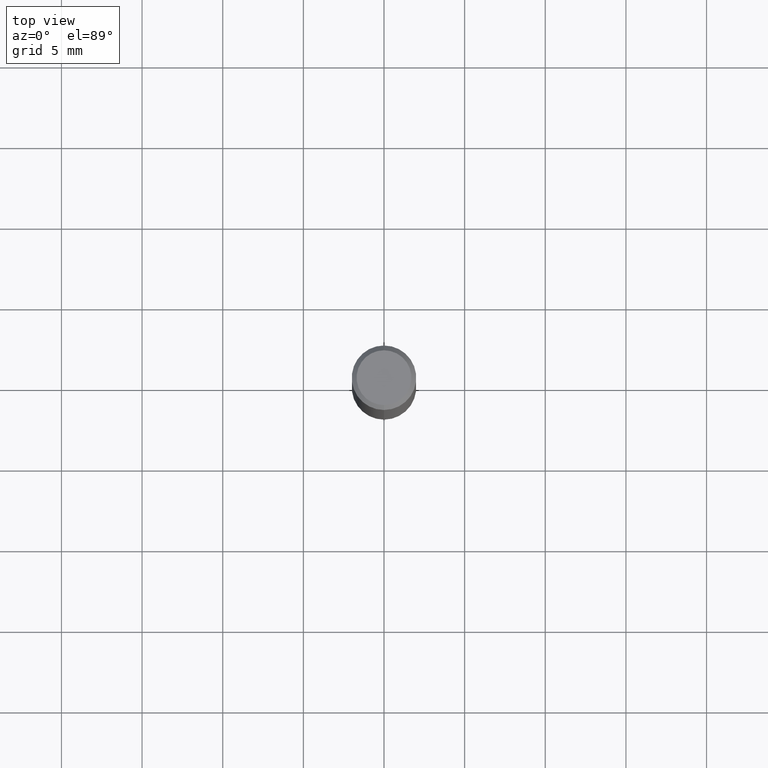
[diagram: clean part render]
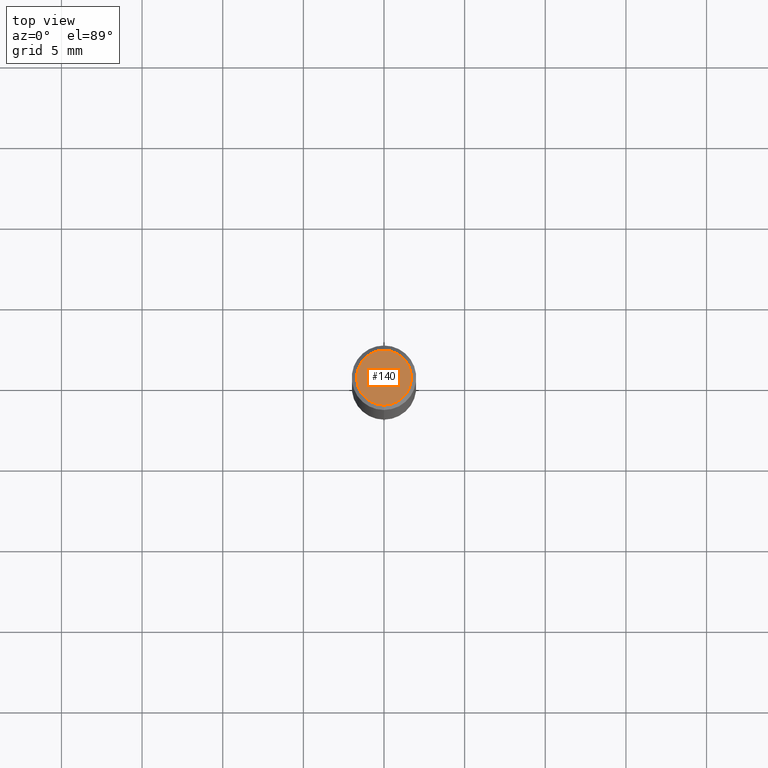
[diagram: same view with one face highlighted and labeled with its STEP entity id]
A machine part, top view. The second image highlights one B-rep face of the part: STEP entity #140.
In plain terms, the highlighted planar face has unit normal (-0, 0, 1).
Its self-contained STEP definition (entity closure, byte-faithful):
#100=EDGE_CURVE('',#162,#198,#243,.T.);
#140=ADVANCED_FACE('',(#289),#290,.T.);
#162=VERTEX_POINT('',#313);
#192=EDGE_CURVE('',#198,#162,#348,.T.);
#198=VERTEX_POINT('',#355);
#243=CIRCLE('',#395,1.7);
#289=FACE_OUTER_BOUND('',#453,.T.);
#290=PLANE('',#454);
#313=CARTESIAN_POINT('',(0.0,1.7,0.0));
#348=CIRCLE('',#528,1.7);
#355=CARTESIAN_POINT('',(2.08183080149804E-016,-1.7,0.0));
#395=AXIS2_PLACEMENT_3D('',#578,#579,#580);
#453=EDGE_LOOP('',(#632,#633));
#454=AXIS2_PLACEMENT_3D('',#634,#635,#636);
#528=AXIS2_PLACEMENT_3D('',#714,#715,#716);
#578=CARTESIAN_POINT('',(0.0,0.0,0.0));
#579=DIRECTION('',(0.0,0.0,-1.0));
#580=DIRECTION('',(0.0,1.0,0.0));
#632=ORIENTED_EDGE('',*,*,#100,.F.);
#633=ORIENTED_EDGE('',*,*,#192,.F.);
#634=CARTESIAN_POINT('',(0.0,0.85,0.0));
#635=DIRECTION('',(-0.0,0.0,1.0));
#636=DIRECTION('',(0.0,-1.0,0.0));
#714=CARTESIAN_POINT('',(0.0,0.0,0.0));
#715=DIRECTION('',(0.0,0.0,-1.0));
#716=DIRECTION('',(0.0,1.0,0.0));